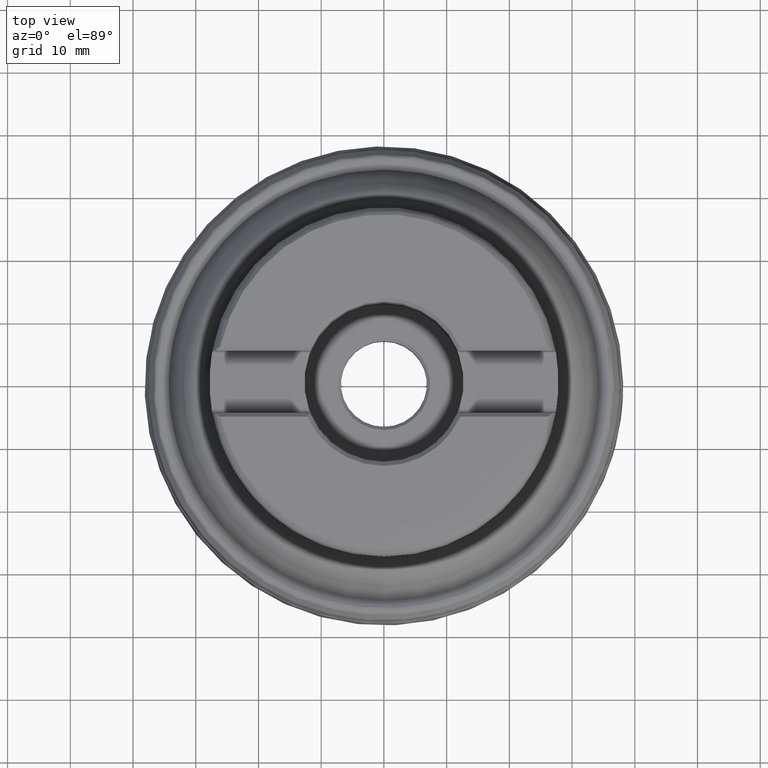
[diagram: clean part render]
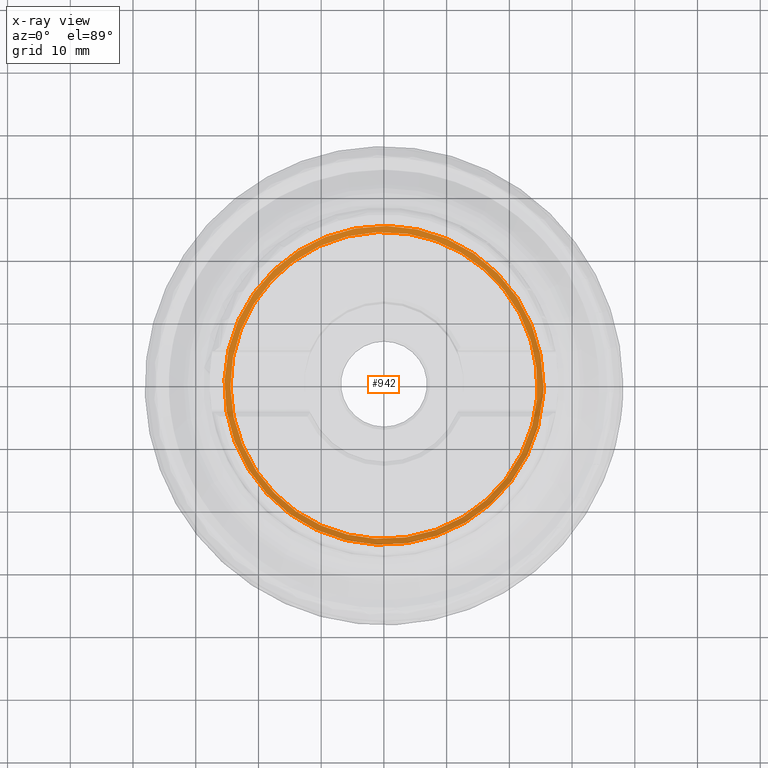
[diagram: x-ray — body ghosted, one internal face saturated and labeled with its STEP entity id]
A machine part, top view, then the same camera in x-ray: the body is ghosted and one INTERNAL B-rep face — a face not visible from any outside direction — is saturated and labeled: STEP entity #942.
In plain terms, the highlighted face is a SurfaceOfRevolution surface.
Its self-contained STEP definition (entity closure, byte-faithful):
#116=SURFACE_OF_REVOLUTION('',#4597,#137);
#137=AXIS1_PLACEMENT('',#17896,#5311);
#166=(
BOUNDED_CURVE()
B_SPLINE_CURVE(3,(#17883,#17884,#17885,#17886,#17887,#17888,#17889),
 .UNSPECIFIED.,.T.,.F.)
B_SPLINE_CURVE_WITH_KNOTS((1,3,3,3,1),(-0.5,0.,0.5,1.,1.5),
 .UNSPECIFIED.)
CURVE()
GEOMETRIC_REPRESENTATION_ITEM()
RATIONAL_B_SPLINE_CURVE((1.,0.333333333333333,0.333333333333333,1.,0.333333333333333,
0.333333333333333,1.))
REPRESENTATION_ITEM('')
);
#615=FACE_BOUND('',#1577,.T.);
#616=FACE_BOUND('',#1578,.T.);
#942=ADVANCED_FACE('',(#615,#616),#116,.F.);
#1577=EDGE_LOOP('',(#3039));
#1578=EDGE_LOOP('',(#3040));
#1750=CIRCLE('',#4825,25.4302154989457);
#3039=ORIENTED_EDGE('',*,*,#4108,.T.);
#3040=ORIENTED_EDGE('',*,*,#4109,.F.);
#3456=VERTEX_POINT('',#17877);
#3457=VERTEX_POINT('',#17890);
#4108=EDGE_CURVE('',#3456,#3456,#1750,.T.);
#4109=EDGE_CURVE('',#3457,#3457,#166,.T.);
#4597=B_SPLINE_CURVE_WITH_KNOTS('',3,(#17891,#17892,#17893,#17894,#17895),
 .UNSPECIFIED.,.F.,.F.,(4,1,4),(0.,0.5,1.),.UNSPECIFIED.);
#4825=AXIS2_PLACEMENT_3D('',#17876,#5308,#5309);
#5308=DIRECTION('',(0.,0.,1.));
#5309=DIRECTION('',(1.,0.,0.));
#5311=DIRECTION('',(0.,0.,1.));
#17876=CARTESIAN_POINT('',(0.,0.,10.0427646082623));
#17877=CARTESIAN_POINT('',(25.4302154989457,0.,10.0427646082623));
#17883=CARTESIAN_POINT('',(24.3777184735947,-2.2730325074463,9.35069805756131));
#17884=CARTESIAN_POINT('',(28.9237834884873,46.482404439743,9.35069805756131));
#17885=CARTESIAN_POINT('',(-19.8316534587021,51.0284694546356,9.35069805756131));
#17886=CARTESIAN_POINT('',(-24.3777184735947,2.2730325074463,9.35069805756131));
#17887=CARTESIAN_POINT('',(-28.9237834884873,-46.482404439743,9.35069805756131));
#17888=CARTESIAN_POINT('',(19.8316534587021,-51.0284694546356,9.35069805756131));
#17889=CARTESIAN_POINT('',(24.3777184735947,-2.2730325074463,9.35069805756131));
#17890=CARTESIAN_POINT('',(24.3777338562244,-2.27303394175679,9.35065712010823));
#17891=CARTESIAN_POINT('',(24.3776922049211,-2.27305045762069,9.35059536089501));
#17892=CARTESIAN_POINT('',(24.5731348547607,-2.20393022457607,9.42133560210326));
#17893=CARTESIAN_POINT('',(24.9531572825164,-2.03361731658552,9.61214485492002));
#17894=CARTESIAN_POINT('',(25.252687037168,-1.82688426037569,9.89027831782248));
#17895=CARTESIAN_POINT('',(25.3716400765086,-1.72429082019165,10.042679098818));
#17896=CARTESIAN_POINT('',(0.,0.,0.));